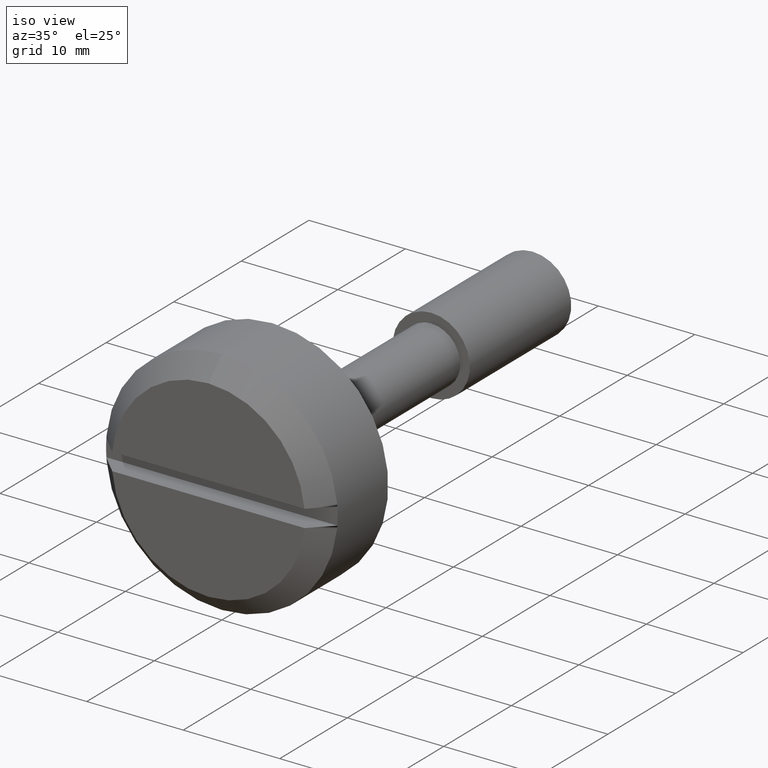
[diagram: clean part render]
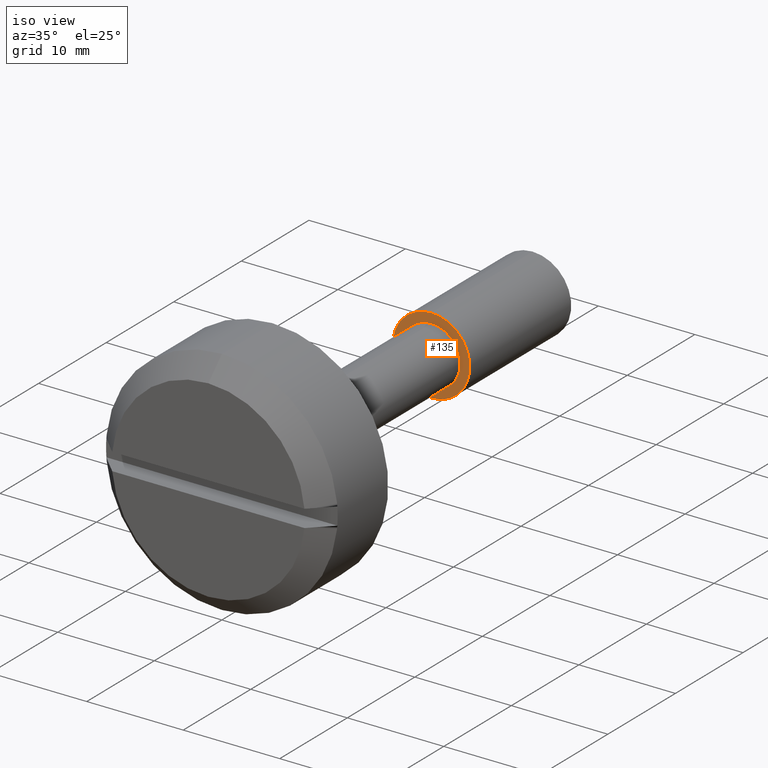
[diagram: same view with one face highlighted and labeled with its STEP entity id]
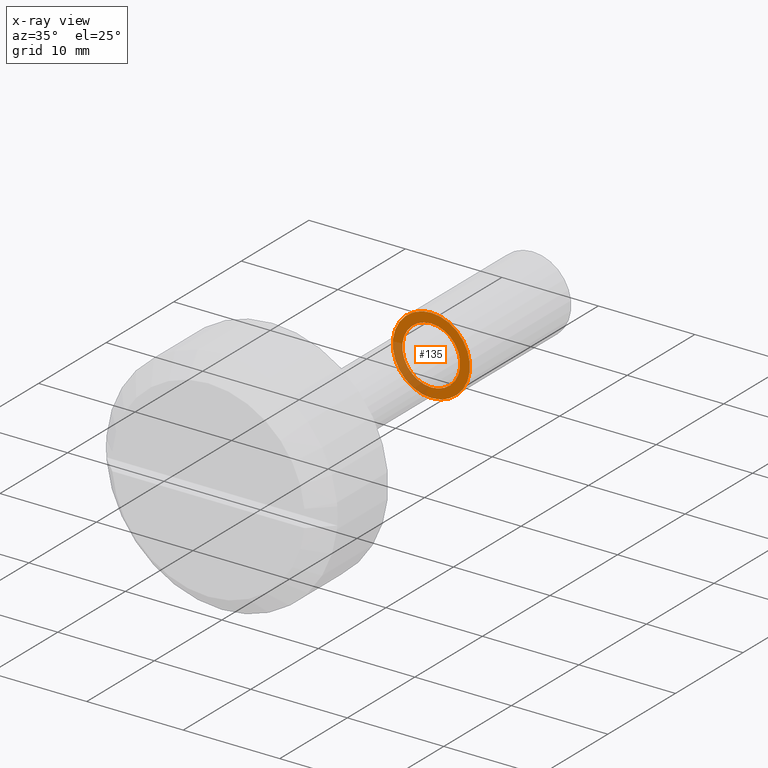
[diagram: x-ray of the same camera — body ghosted, the highlighted face saturated]
A machine part, iso view. The second image highlights one B-rep face of the part: STEP entity #135.
The next image is the same camera in x-ray: the body ghosted, the highlighted face saturated — about 24% of this face is hidden behind the body in this view.
In plain terms, the highlighted planar face has unit normal (0, 1, 0).
Its self-contained STEP definition (entity closure, byte-faithful):
#135=ADVANCED_FACE('',(#389,#390),#388,.F.);
#388=PLANE('',#701);
#389=FACE_OUTER_BOUND('',#702,.T.);
#390=FACE_BOUND('',#703,.T.);
#698=CARTESIAN_POINT('',(2.10000000000E+01,-8.31384387633E+00,5.20000000000E+00));
#699=DIRECTION('',(1.00000000000E+00,0.00000000000E+00,0.00000000000E+00));
#700=DIRECTION('',(0.00000000000E+00,0.00000000000E+00,-1.00000000000E+00));
#701=AXIS2_PLACEMENT_3D('',#698,#699,#700);
#702=EDGE_LOOP('',(#949,#950));
#703=EDGE_LOOP('',(#951,#952));
#949=ORIENTED_EDGE('',*,*,#1095,.T.);
#950=ORIENTED_EDGE('',*,*,#1096,.T.);
#951=ORIENTED_EDGE('',*,*,#1097,.T.);
#952=ORIENTED_EDGE('',*,*,#1098,.T.);
#1095=EDGE_CURVE('',#1567,#1568,#1569,.T.);
#1096=EDGE_CURVE('',#1568,#1567,#1575,.T.);
#1097=EDGE_CURVE('',#1581,#1582,#1583,.T.);
#1098=EDGE_CURVE('',#1582,#1581,#1589,.T.);
#1567=VERTEX_POINT('',#2065);
#1568=VERTEX_POINT('',#2066);
#1569=CIRCLE('',#2070,4.00000000000E+00);
#1575=CIRCLE('',#2074,4.00000000000E+00);
#1581=VERTEX_POINT('',#2075);
#1582=VERTEX_POINT('',#2076);
#1583=CIRCLE('',#2080,3.00000000000E+00);
#1589=CIRCLE('',#2084,3.00000000000E+00);
#2065=CARTESIAN_POINT('',(2.10000000000E+01,0.00000000000E+00,4.00000000000E+00));
#2066=CARTESIAN_POINT('',(2.10000000000E+01,4.44089209850E-16,-4.00000000000E+00));
#2067=CARTESIAN_POINT('',(2.10000000000E+01,0.00000000000E+00,0.00000000000E+00));
#2068=DIRECTION('',(-1.00000000000E+00,0.00000000000E+00,0.00000000000E+00));
#2069=DIRECTION('',(0.00000000000E+00,-1.22460635382E-16,1.00000000000E+00));
#2070=AXIS2_PLACEMENT_3D('',#2067,#2068,#2069);
#2071=CARTESIAN_POINT('',(2.10000000000E+01,0.00000000000E+00,0.00000000000E+00));
#2072=DIRECTION('',(-1.00000000000E+00,0.00000000000E+00,0.00000000000E+00));
#2073=DIRECTION('',(0.00000000000E+00,-1.22460635382E-16,1.00000000000E+00));
#2074=AXIS2_PLACEMENT_3D('',#2071,#2072,#2073);
#2075=CARTESIAN_POINT('',(2.10000000000E+01,0.00000000000E+00,-3.00000000000E+00));
#2076=CARTESIAN_POINT('',(2.10000000000E+01,-1.48029736617E-16,3.00000000000E+00));
#2077=CARTESIAN_POINT('',(2.10000000000E+01,0.00000000000E+00,0.00000000000E+00));
#2078=DIRECTION('',(1.00000000000E+00,0.00000000000E+00,0.00000000000E+00));
#2079=DIRECTION('',(0.00000000000E+00,-1.22460635382E-16,-1.00000000000E+00));
#2080=AXIS2_PLACEMENT_3D('',#2077,#2078,#2079);
#2081=CARTESIAN_POINT('',(2.10000000000E+01,0.00000000000E+00,0.00000000000E+00));
#2082=DIRECTION('',(1.00000000000E+00,0.00000000000E+00,0.00000000000E+00));
#2083=DIRECTION('',(0.00000000000E+00,-1.22460635382E-16,-1.00000000000E+00));
#2084=AXIS2_PLACEMENT_3D('',#2081,#2082,#2083);